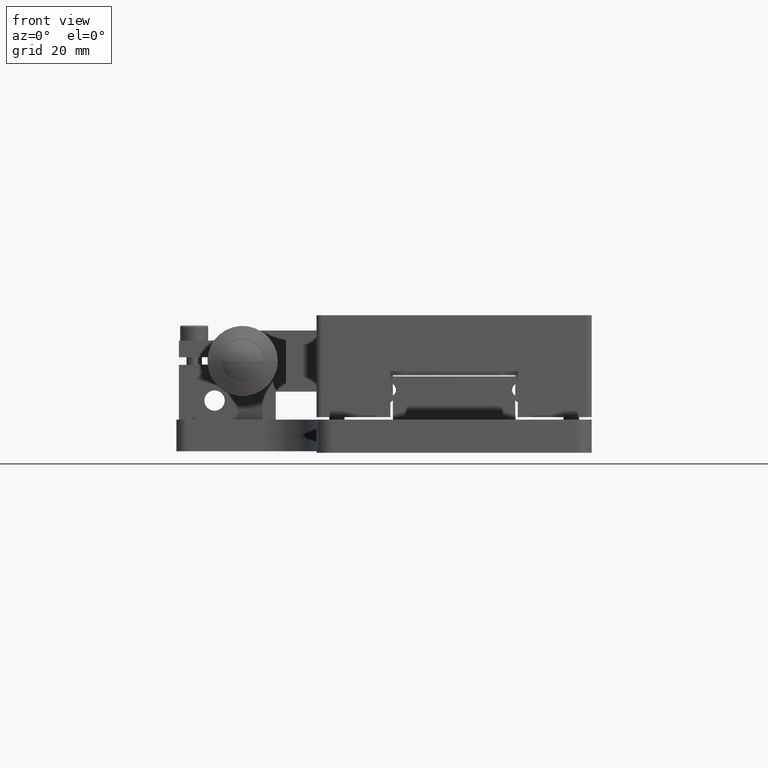
[diagram: clean part render]
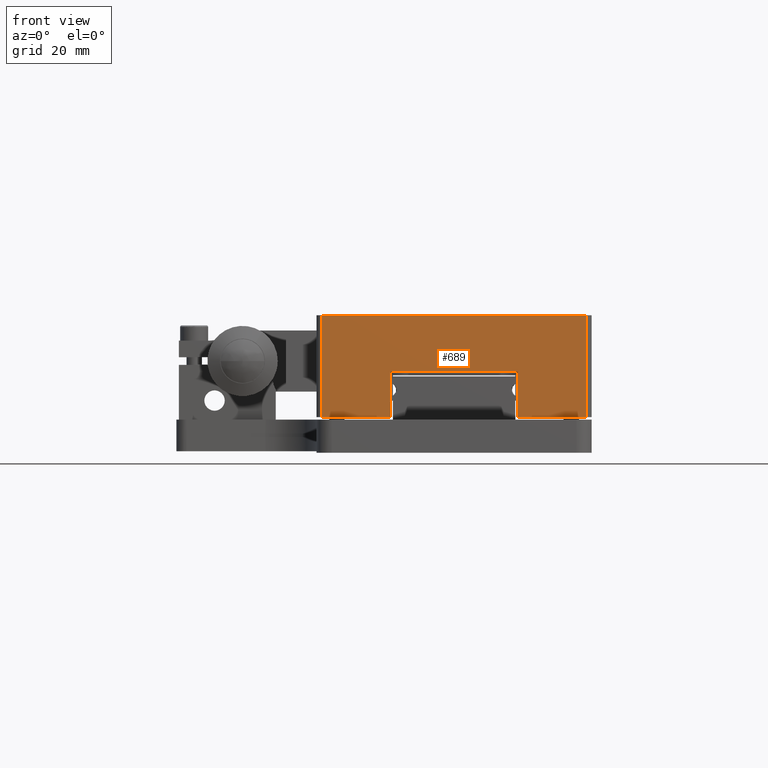
[diagram: same view with one face highlighted and labeled with its STEP entity id]
A machine part, front view. The second image highlights one B-rep face of the part: STEP entity #689.
In plain terms, the highlighted face is a freeform B-spline surface patch.
Its self-contained STEP definition (entity closure, byte-faithful):
#689=ADVANCED_FACE('',(#1310),#22481,.T.);
#1310=FACE_OUTER_BOUND('',#2024,.T.);
#2024=EDGE_LOOP('',(#4246,#4247,#4248,#4249,#4250,#4251,#4252,#4253));
#4246=ORIENTED_EDGE('',*,*,#19049,.F.);
#4247=ORIENTED_EDGE('',*,*,#18892,.F.);
#4248=ORIENTED_EDGE('',*,*,#19114,.F.);
#4249=ORIENTED_EDGE('',*,*,#19122,.F.);
#4250=ORIENTED_EDGE('',*,*,#19124,.F.);
#4251=ORIENTED_EDGE('',*,*,#19060,.F.);
#4252=ORIENTED_EDGE('',*,*,#19065,.F.);
#4253=ORIENTED_EDGE('',*,*,#18941,.F.);
#7135=PCURVE('',#22458,#10541);
#7210=PCURVE('',#22464,#10616);
#7439=PCURVE('',#22839,#10845);
#7458=PCURVE('',#22469,#10864);
#7478=PCURVE('',#22842,#10884);
#7617=PCURVE('',#22474,#11023);
#7629=PCURVE('',#22477,#11035);
#7633=PCURVE('',#22478,#11039);
#7652=PCURVE('',#22481,#11058);
#7653=PCURVE('',#22481,#11059);
#7654=PCURVE('',#22481,#11060);
#7655=PCURVE('',#22481,#11061);
#7656=PCURVE('',#22481,#11062);
#7657=PCURVE('',#22481,#11063);
#7658=PCURVE('',#22481,#11064);
#7659=PCURVE('',#22481,#11065);
#10541=DEFINITIONAL_REPRESENTATION('',(#13987),#46445);
#10616=DEFINITIONAL_REPRESENTATION('',(#14051),#46445);
#10845=DEFINITIONAL_REPRESENTATION('',(#14275),#46445);
#10864=DEFINITIONAL_REPRESENTATION('',(#14299),#46445);
#10884=DEFINITIONAL_REPRESENTATION('',(#14314),#46445);
#11023=DEFINITIONAL_REPRESENTATION('',(#14496),#46445);
#11035=DEFINITIONAL_REPRESENTATION('',(#14516),#46445);
#11039=DEFINITIONAL_REPRESENTATION('',(#14522),#46445);
#11058=DEFINITIONAL_REPRESENTATION('',(#14542),#46445);
#11059=DEFINITIONAL_REPRESENTATION('',(#14543),#46445);
#11060=DEFINITIONAL_REPRESENTATION('',(#14544),#46445);
#11061=DEFINITIONAL_REPRESENTATION('',(#14545),#46445);
#11062=DEFINITIONAL_REPRESENTATION('',(#14546),#46445);
#11063=DEFINITIONAL_REPRESENTATION('',(#14547),#46445);
#11064=DEFINITIONAL_REPRESENTATION('',(#14548),#46445);
#11065=DEFINITIONAL_REPRESENTATION('',(#14549),#46445);
#13986=B_SPLINE_CURVE_WITH_KNOTS('',1,(#35422,#35423),.UNSPECIFIED.,.F.,
 .F.,(2,2),(-13.4999999999999,0.),.UNSPECIFIED.);
#13987=B_SPLINE_CURVE_WITH_KNOTS('',1,(#35424,#35425),.UNSPECIFIED.,.F.,
 .F.,(2,2),(-13.4999999999999,0.),.UNSPECIFIED.);
#14050=B_SPLINE_CURVE_WITH_KNOTS('',1,(#35786,#35787),.UNSPECIFIED.,.F.,
 .F.,(2,2),(0.,52.),.UNSPECIFIED.);
#14051=B_SPLINE_CURVE_WITH_KNOTS('',1,(#35788,#35789),.UNSPECIFIED.,.F.,
 .F.,(2,2),(0.,52.),.UNSPECIFIED.);
#14274=B_SPLINE_CURVE_WITH_KNOTS('',1,(#36881,#36882),.UNSPECIFIED.,.F.,
 .F.,(2,2),(0.,20.),.UNSPECIFIED.);
#14275=B_SPLINE_CURVE_WITH_KNOTS('',1,(#36883,#36884),.UNSPECIFIED.,.F.,
 .F.,(2,2),(0.,20.),.UNSPECIFIED.);
#14298=B_SPLINE_CURVE_WITH_KNOTS('',1,(#36951,#36952),.UNSPECIFIED.,.F.,
 .F.,(2,2),(-13.5000000000001,0.),.UNSPECIFIED.);
#14299=B_SPLINE_CURVE_WITH_KNOTS('',1,(#36953,#36954),.UNSPECIFIED.,.F.,
 .F.,(2,2),(-13.5000000000001,0.),.UNSPECIFIED.);
#14313=B_SPLINE_CURVE_WITH_KNOTS('',1,(#37017,#37018),.UNSPECIFIED.,.F.,
 .F.,(2,2),(0.,20.),.UNSPECIFIED.);
#14314=B_SPLINE_CURVE_WITH_KNOTS('',1,(#37019,#37020),.UNSPECIFIED.,.F.,
 .F.,(2,2),(0.,20.),.UNSPECIFIED.);
#14495=B_SPLINE_CURVE_WITH_KNOTS('',1,(#37611,#37612),.UNSPECIFIED.,.F.,
 .F.,(2,2),(-8.9,0.),.UNSPECIFIED.);
#14496=B_SPLINE_CURVE_WITH_KNOTS('',1,(#37613,#37614),.UNSPECIFIED.,.F.,
 .F.,(2,2),(-8.9,0.),.UNSPECIFIED.);
#14515=B_SPLINE_CURVE_WITH_KNOTS('',1,(#37651,#37652),.UNSPECIFIED.,.F.,
 .F.,(2,2),(-25.,0.),.UNSPECIFIED.);
#14516=B_SPLINE_CURVE_WITH_KNOTS('',1,(#37653,#37654),.UNSPECIFIED.,.F.,
 .F.,(2,2),(-25.,0.),.UNSPECIFIED.);
#14521=B_SPLINE_CURVE_WITH_KNOTS('',1,(#37663,#37664),.UNSPECIFIED.,.F.,
 .F.,(2,2),(-8.90000000000001,0.),.UNSPECIFIED.);
#14522=B_SPLINE_CURVE_WITH_KNOTS('',1,(#37665,#37666),.UNSPECIFIED.,.F.,
 .F.,(2,2),(-8.90000000000001,0.),.UNSPECIFIED.);
#14542=B_SPLINE_CURVE_WITH_KNOTS('',1,(#37705,#37706),.UNSPECIFIED.,.F.,
 .F.,(2,2),(0.,20.),.UNSPECIFIED.);
#14543=B_SPLINE_CURVE_WITH_KNOTS('',1,(#37707,#37708),.UNSPECIFIED.,.F.,
 .F.,(2,2),(-13.4999999999999,0.),.UNSPECIFIED.);
#14544=B_SPLINE_CURVE_WITH_KNOTS('',1,(#37709,#37710),.UNSPECIFIED.,.F.,
 .F.,(2,2),(-8.9,0.),.UNSPECIFIED.);
#14545=B_SPLINE_CURVE_WITH_KNOTS('',1,(#37711,#37712),.UNSPECIFIED.,.F.,
 .F.,(2,2),(-25.,0.),.UNSPECIFIED.);
#14546=B_SPLINE_CURVE_WITH_KNOTS('',1,(#37713,#37714),.UNSPECIFIED.,.F.,
 .F.,(2,2),(-8.90000000000001,0.),.UNSPECIFIED.);
#14547=B_SPLINE_CURVE_WITH_KNOTS('',1,(#37715,#37716),.UNSPECIFIED.,.F.,
 .F.,(2,2),(-13.5000000000001,0.),.UNSPECIFIED.);
#14548=B_SPLINE_CURVE_WITH_KNOTS('',1,(#37717,#37718),.UNSPECIFIED.,.F.,
 .F.,(2,2),(0.,20.),.UNSPECIFIED.);
#14549=B_SPLINE_CURVE_WITH_KNOTS('',1,(#37719,#37720),.UNSPECIFIED.,.F.,
 .F.,(2,2),(0.,52.),.UNSPECIFIED.);
#17155=SURFACE_CURVE('',#13986,(#7135,#7653),.PCURVE_S1.);
#17204=SURFACE_CURVE('',#14050,(#7210,#7659),.PCURVE_S1.);
#17312=SURFACE_CURVE('',#14274,(#7439,#7652),.PCURVE_S1.);
#17323=SURFACE_CURVE('',#14298,(#7458,#7657),.PCURVE_S1.);
#17328=SURFACE_CURVE('',#14313,(#7478,#7658),.PCURVE_S1.);
#17377=SURFACE_CURVE('',#14495,(#7617,#7654),.PCURVE_S1.);
#17385=SURFACE_CURVE('',#14515,(#7629,#7655),.PCURVE_S1.);
#17387=SURFACE_CURVE('',#14521,(#7633,#7656),.PCURVE_S1.);
#18892=EDGE_CURVE('',#21732,#21733,#17155,.T.);
#18941=EDGE_CURVE('',#21768,#21769,#17204,.T.);
#19049=EDGE_CURVE('',#21733,#21768,#17312,.T.);
#19060=EDGE_CURVE('',#21845,#21846,#17323,.T.);
#19065=EDGE_CURVE('',#21769,#21845,#17328,.T.);
#19114=EDGE_CURVE('',#21881,#21732,#17377,.T.);
#19122=EDGE_CURVE('',#21885,#21881,#17385,.T.);
#19124=EDGE_CURVE('',#21846,#21885,#17387,.T.);
#21732=VERTEX_POINT('',#28967);
#21733=VERTEX_POINT('',#28968);
#21768=VERTEX_POINT('',#29003);
#21769=VERTEX_POINT('',#29004);
#21845=VERTEX_POINT('',#29080);
#21846=VERTEX_POINT('',#29081);
#21881=VERTEX_POINT('',#29116);
#21885=VERTEX_POINT('',#29120);
#22458=B_SPLINE_SURFACE_WITH_KNOTS('',1,1,((#25959,#25960),(#25961,#25962)),
 .UNSPECIFIED.,.F.,.F.,.F.,(2,2),(2,2),(-8.2743956043956,61.5656043956044),
(-28.5699999999999,-10.93),.UNSPECIFIED.);
#22464=B_SPLINE_SURFACE_WITH_KNOTS('',1,1,((#26127,#26128),(#26129,#26130)),
 .UNSPECIFIED.,.F.,.F.,.F.,(2,2),(2,2),(-32.52,32.5200000000001),(-34.92,
34.92),.UNSPECIFIED.);
#22469=B_SPLINE_SURFACE_WITH_KNOTS('',1,1,((#26725,#26726),(#26727,#26728)),
 .UNSPECIFIED.,.F.,.F.,.F.,(2,2),(2,2),(-8.27439560439561,61.5656043956044),
(10.9299999999999,28.5700000000001),.UNSPECIFIED.);
#22474=B_SPLINE_SURFACE_WITH_KNOTS('',1,1,((#27125,#27126),(#27127,#27128)),
 .UNSPECIFIED.,.F.,.F.,.F.,(2,2),(2,2),(-0.670000000000002,6.17),(-9.91,
1.01),.UNSPECIFIED.);
#22477=B_SPLINE_SURFACE_WITH_KNOTS('',1,1,((#27137,#27138),(#27139,#27140)),
 .UNSPECIFIED.,.F.,.F.,.F.,(2,2),(2,2),(-27.62,2.62),(-6.17000000000001,
0.670000000000002),.UNSPECIFIED.);
#22478=B_SPLINE_SURFACE_WITH_KNOTS('',1,1,((#27141,#27142),(#27143,#27144)),
 .UNSPECIFIED.,.F.,.F.,.F.,(2,2),(2,2),(-0.670000000000002,6.17),(-9.91000000000001,
1.01),.UNSPECIFIED.);
#22481=B_SPLINE_SURFACE_WITH_KNOTS('',1,1,((#27153,#27154),(#27155,#27156)),
 .UNSPECIFIED.,.F.,.F.,.F.,(2,2),(2,2),(-4.12,20.12),(-5.32,57.32),
 .UNSPECIFIED.);
#22839=(
BOUNDED_SURFACE()
B_SPLINE_SURFACE(2,1,((#26671,#26672),(#26673,#26674),(#26675,#26676),(#26677,
#26678),(#26679,#26680),(#26681,#26682),(#26683,#26684),(#26685,#26686),
(#26687,#26688)),.UNSPECIFIED.,.T.,.F.,.F.)
B_SPLINE_SURFACE_WITH_KNOTS((3,2,2,2,3),(2,2),(0.,1.5707963267949,3.14159265358979,
4.71238898038469,6.28318530717959),(0.,24.24),.UNSPECIFIED.)
GEOMETRIC_REPRESENTATION_ITEM()
RATIONAL_B_SPLINE_SURFACE(((1.,1.),(0.707106781186548,0.707106781186548),
(1.,1.),(0.707106781186548,0.707106781186548),(1.,1.),(0.707106781186548,
0.707106781186548),(1.,1.),(0.707106781186548,0.707106781186548),(1.,1.)))
REPRESENTATION_ITEM('')
SURFACE()
);
#22842=(
BOUNDED_SURFACE()
B_SPLINE_SURFACE(2,1,((#26733,#26734),(#26735,#26736),(#26737,#26738),(#26739,
#26740),(#26741,#26742),(#26743,#26744),(#26745,#26746),(#26747,#26748),
(#26749,#26750)),.UNSPECIFIED.,.T.,.F.,.F.)
B_SPLINE_SURFACE_WITH_KNOTS((3,2,2,2,3),(2,2),(0.,1.5707963267949,3.14159265358979,
4.71238898038469,6.28318530717959),(0.,24.24),.UNSPECIFIED.)
GEOMETRIC_REPRESENTATION_ITEM()
RATIONAL_B_SPLINE_SURFACE(((1.,1.),(0.707106781186548,0.707106781186548),
(1.,1.),(0.707106781186548,0.707106781186548),(1.,1.),(0.707106781186548,
0.707106781186548),(1.,1.),(0.707106781186548,0.707106781186548),(1.,1.)))
REPRESENTATION_ITEM('')
SURFACE()
);
#25959=CARTESIAN_POINT('',(-27.9429506502019,-7.76680358437653,50.57));
#25960=CARTESIAN_POINT('',(-10.302950650202,-7.76680358437653,50.57));
#25961=CARTESIAN_POINT('',(-27.9429506502019,-7.76680358437653,-19.27));
#25962=CARTESIAN_POINT('',(-10.302950650202,-7.76680358437653,-19.27));
#26127=CARTESIAN_POINT('',(-31.8929506502019,12.2331964156235,50.57));
#26128=CARTESIAN_POINT('',(-31.8929506502019,12.2331964156235,-19.27));
#26129=CARTESIAN_POINT('',(33.1470493497981,12.2331964156235,50.57));
#26130=CARTESIAN_POINT('',(33.1470493497981,12.2331964156235,-19.27));
#26671=CARTESIAN_POINT('',(-24.3729506502019,14.3531964156235,43.65));
#26672=CARTESIAN_POINT('',(-24.3729506502019,-9.88680358437653,43.65));
#26673=CARTESIAN_POINT('',(-24.3729506502019,14.3531964156235,44.65));
#26674=CARTESIAN_POINT('',(-24.3729506502019,-9.88680358437653,44.65));
#26675=CARTESIAN_POINT('',(-25.3729506502019,14.3531964156235,44.65));
#26676=CARTESIAN_POINT('',(-25.3729506502019,-9.88680358437653,44.65));
#26677=CARTESIAN_POINT('',(-26.3729506502019,14.3531964156235,44.65));
#26678=CARTESIAN_POINT('',(-26.3729506502019,-9.88680358437653,44.65));
#26679=CARTESIAN_POINT('',(-26.3729506502019,14.3531964156235,43.65));
#26680=CARTESIAN_POINT('',(-26.3729506502019,-9.88680358437653,43.65));
#26681=CARTESIAN_POINT('',(-26.3729506502019,14.3531964156235,42.65));
#26682=CARTESIAN_POINT('',(-26.3729506502019,-9.88680358437653,42.65));
#26683=CARTESIAN_POINT('',(-25.3729506502019,14.3531964156235,42.65));
#26684=CARTESIAN_POINT('',(-25.3729506502019,-9.88680358437653,42.65));
#26685=CARTESIAN_POINT('',(-24.3729506502019,14.3531964156235,42.65));
#26686=CARTESIAN_POINT('',(-24.3729506502019,-9.88680358437653,42.65));
#26687=CARTESIAN_POINT('',(-24.3729506502019,14.3531964156235,43.65));
#26688=CARTESIAN_POINT('',(-24.3729506502019,-9.88680358437653,43.65));
#26725=CARTESIAN_POINT('',(11.557049349798,-7.76680358437653,50.57));
#26726=CARTESIAN_POINT('',(29.1970493497981,-7.76680358437653,50.57));
#26727=CARTESIAN_POINT('',(11.557049349798,-7.76680358437653,-19.27));
#26728=CARTESIAN_POINT('',(29.1970493497981,-7.76680358437653,-19.27));
#26733=CARTESIAN_POINT('',(25.6270493497981,-9.88680358437652,43.65));
#26734=CARTESIAN_POINT('',(25.6270493497981,14.3531964156235,43.65));
#26735=CARTESIAN_POINT('',(25.6270493497981,-9.88680358437652,44.65));
#26736=CARTESIAN_POINT('',(25.6270493497981,14.3531964156235,44.65));
#26737=CARTESIAN_POINT('',(26.6270493497981,-9.88680358437652,44.65));
#26738=CARTESIAN_POINT('',(26.6270493497981,14.3531964156235,44.65));
#26739=CARTESIAN_POINT('',(27.6270493497981,-9.88680358437652,44.65));
#26740=CARTESIAN_POINT('',(27.6270493497981,14.3531964156235,44.65));
#26741=CARTESIAN_POINT('',(27.6270493497981,-9.88680358437652,43.65));
#26742=CARTESIAN_POINT('',(27.6270493497981,14.3531964156235,43.65));
#26743=CARTESIAN_POINT('',(27.6270493497981,-9.88680358437652,42.65));
#26744=CARTESIAN_POINT('',(27.6270493497981,14.3531964156235,42.65));
#26745=CARTESIAN_POINT('',(26.6270493497981,-9.88680358437652,42.65));
#26746=CARTESIAN_POINT('',(26.6270493497981,14.3531964156235,42.65));
#26747=CARTESIAN_POINT('',(25.6270493497981,-9.88680358437652,42.65));
#26748=CARTESIAN_POINT('',(25.6270493497981,14.3531964156235,42.65));
#26749=CARTESIAN_POINT('',(25.6270493497981,-9.88680358437652,43.65));
#26750=CARTESIAN_POINT('',(25.6270493497981,14.3531964156235,43.65));
#27125=CARTESIAN_POINT('',(-11.872950650202,-8.77680358437653,45.32));
#27126=CARTESIAN_POINT('',(-11.872950650202,2.14319641562347,45.32));
#27127=CARTESIAN_POINT('',(-11.872950650202,-8.77680358437653,38.48));
#27128=CARTESIAN_POINT('',(-11.872950650202,2.14319641562347,38.48));
#27137=CARTESIAN_POINT('',(-14.492950650202,1.13319641562347,38.48));
#27138=CARTESIAN_POINT('',(-14.492950650202,1.13319641562347,45.32));
#27139=CARTESIAN_POINT('',(15.747049349798,1.13319641562348,38.48));
#27140=CARTESIAN_POINT('',(15.747049349798,1.13319641562348,45.32));
#27141=CARTESIAN_POINT('',(13.127049349798,2.14319641562348,45.32));
#27142=CARTESIAN_POINT('',(13.127049349798,-8.77680358437653,45.32));
#27143=CARTESIAN_POINT('',(13.127049349798,2.14319641562348,38.48));
#27144=CARTESIAN_POINT('',(13.127049349798,-8.77680358437653,38.48));
#27153=CARTESIAN_POINT('',(-30.6929506502019,14.3531964156235,44.65));
#27154=CARTESIAN_POINT('',(31.9470493497981,14.3531964156235,44.65));
#27155=CARTESIAN_POINT('',(-30.6929506502019,-9.88680358437654,44.65));
#27156=CARTESIAN_POINT('',(31.9470493497981,-9.88680358437653,44.65));
#28967=CARTESIAN_POINT('',(-11.872950650202,-7.76680358437653,44.65));
#28968=CARTESIAN_POINT('',(-25.3729506502019,-7.76680358437653,44.65));
#29003=CARTESIAN_POINT('',(-25.3729506502019,12.2331964156235,44.65));
#29004=CARTESIAN_POINT('',(26.6270493497981,12.2331964156235,44.65));
#29080=CARTESIAN_POINT('',(26.6270493497981,-7.76680358437652,44.65));
#29081=CARTESIAN_POINT('',(13.127049349798,-7.76680358437653,44.65));
#29116=CARTESIAN_POINT('',(-11.872950650202,1.13319641562347,44.65));
#29120=CARTESIAN_POINT('',(13.127049349798,1.13319641562348,44.65));
#35422=CARTESIAN_POINT('',(-11.872950650202,-7.76680358437653,44.65));
#35423=CARTESIAN_POINT('',(-25.3729506502019,-7.76680358437653,44.65));
#35424=CARTESIAN_POINT('',(-2.3543956043956,-12.5000000000001));
#35425=CARTESIAN_POINT('',(-2.35439560439559,-26.));
#35786=CARTESIAN_POINT('',(-25.3729506502019,12.2331964156235,44.65));
#35787=CARTESIAN_POINT('',(26.6270493497981,12.2331964156235,44.65));
#35788=CARTESIAN_POINT('',(-26.,-29.));
#35789=CARTESIAN_POINT('',(26.,-29.));
#36881=CARTESIAN_POINT('',(-25.3729506502019,-7.76680358437653,44.65));
#36882=CARTESIAN_POINT('',(-25.3729506502019,12.2331964156235,44.65));
#36883=CARTESIAN_POINT('',(1.5707963267949,22.12));
#36884=CARTESIAN_POINT('',(1.5707963267949,2.12));
#36951=CARTESIAN_POINT('',(26.6270493497981,-7.76680358437652,44.65));
#36952=CARTESIAN_POINT('',(13.127049349798,-7.76680358437653,44.65));
#36953=CARTESIAN_POINT('',(-2.3543956043956,26.0000000000001));
#36954=CARTESIAN_POINT('',(-2.3543956043956,12.5));
#37017=CARTESIAN_POINT('',(26.6270493497981,12.2331964156235,44.65));
#37018=CARTESIAN_POINT('',(26.6270493497981,-7.76680358437652,44.65));
#37019=CARTESIAN_POINT('',(1.5707963267949,22.12));
#37020=CARTESIAN_POINT('',(1.5707963267949,2.12000000000001));
#37611=CARTESIAN_POINT('',(-11.872950650202,1.13319641562347,44.65));
#37612=CARTESIAN_POINT('',(-11.872950650202,-7.76680358437653,44.65));
#37613=CARTESIAN_POINT('',(0.,0.));
#37614=CARTESIAN_POINT('',(-1.18467697534568E-31,-8.9));
#37651=CARTESIAN_POINT('',(13.127049349798,1.13319641562348,44.65));
#37652=CARTESIAN_POINT('',(-11.872950650202,1.13319641562347,44.65));
#37653=CARTESIAN_POINT('',(0.,0.));
#37654=CARTESIAN_POINT('',(-25.,-4.18956862796985E-15));
#37663=CARTESIAN_POINT('',(13.127049349798,-7.76680358437653,44.65));
#37664=CARTESIAN_POINT('',(13.127049349798,1.13319641562348,44.65));
#37665=CARTESIAN_POINT('',(0.,0.));
#37666=CARTESIAN_POINT('',(-2.47224308372758E-31,-8.90000000000001));
#37705=CARTESIAN_POINT('',(18.,-1.99840144432527E-15));
#37706=CARTESIAN_POINT('',(-2.,2.2204460492503E-16));
#37707=CARTESIAN_POINT('',(18.,13.4999999999999));
#37708=CARTESIAN_POINT('',(18.,-1.99840144432527E-15));
#37709=CARTESIAN_POINT('',(9.10000000000003,13.4999999999999));
#37710=CARTESIAN_POINT('',(18.,13.4999999999999));
#37711=CARTESIAN_POINT('',(9.10000000000002,38.4999999999999));
#37712=CARTESIAN_POINT('',(9.10000000000003,13.4999999999999));
#37713=CARTESIAN_POINT('',(18.,38.4999999999999));
#37714=CARTESIAN_POINT('',(9.10000000000002,38.4999999999999));
#37715=CARTESIAN_POINT('',(18.,52.));
#37716=CARTESIAN_POINT('',(18.,38.4999999999999));
#37717=CARTESIAN_POINT('',(-1.99999999999999,52.));
#37718=CARTESIAN_POINT('',(18.,52.));
#37719=CARTESIAN_POINT('',(-2.,2.2204460492503E-16));
#37720=CARTESIAN_POINT('',(-1.99999999999999,52.));
#46445=(
GEOMETRIC_REPRESENTATION_CONTEXT(2)
PARAMETRIC_REPRESENTATION_CONTEXT()
REPRESENTATION_CONTEXT('pspace','')
);